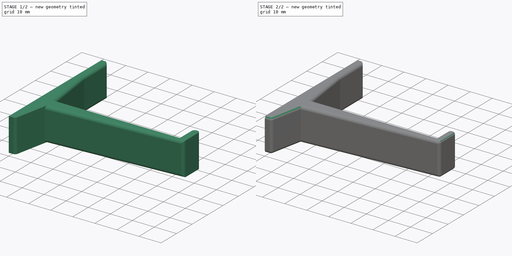
[diagram: build sequence overview — one tinted view per stage of 2, left to right]
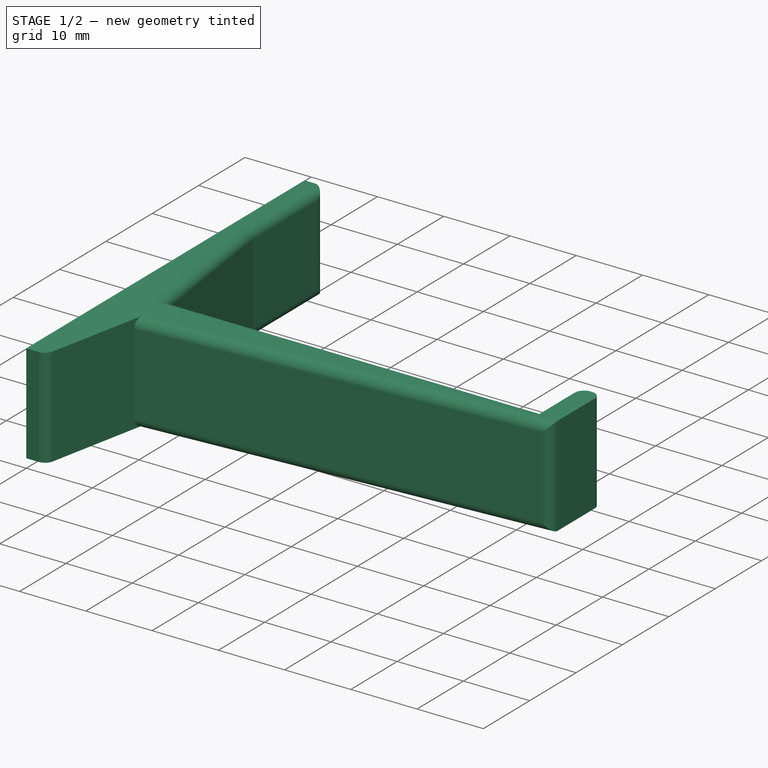
[diagram: stage 1 of 2 — iso view after this stage's code; geometry added in this stage tinted green]
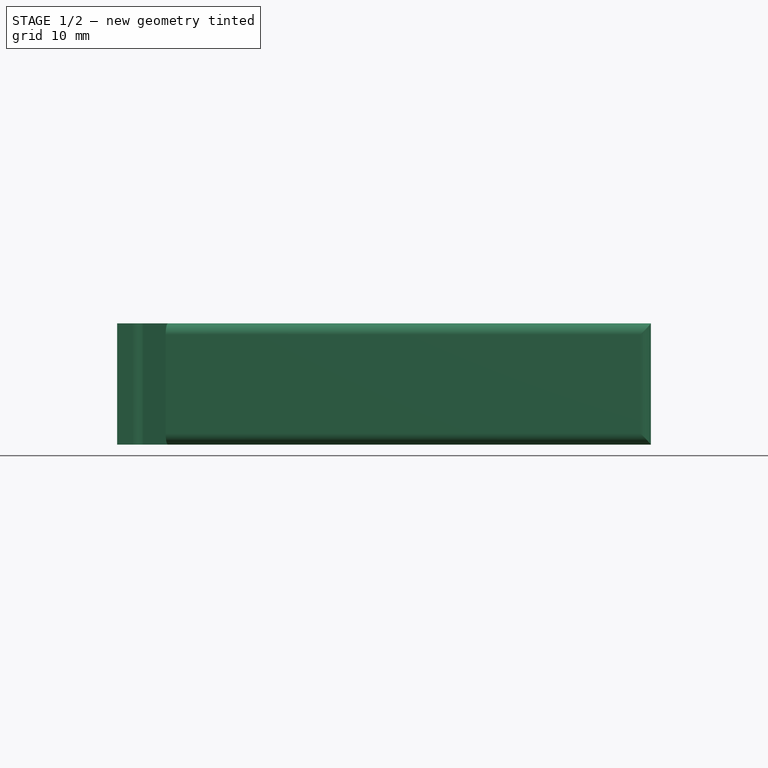
[diagram: stage 1 of 2 — front view after this stage's code; geometry added in this stage tinted green]
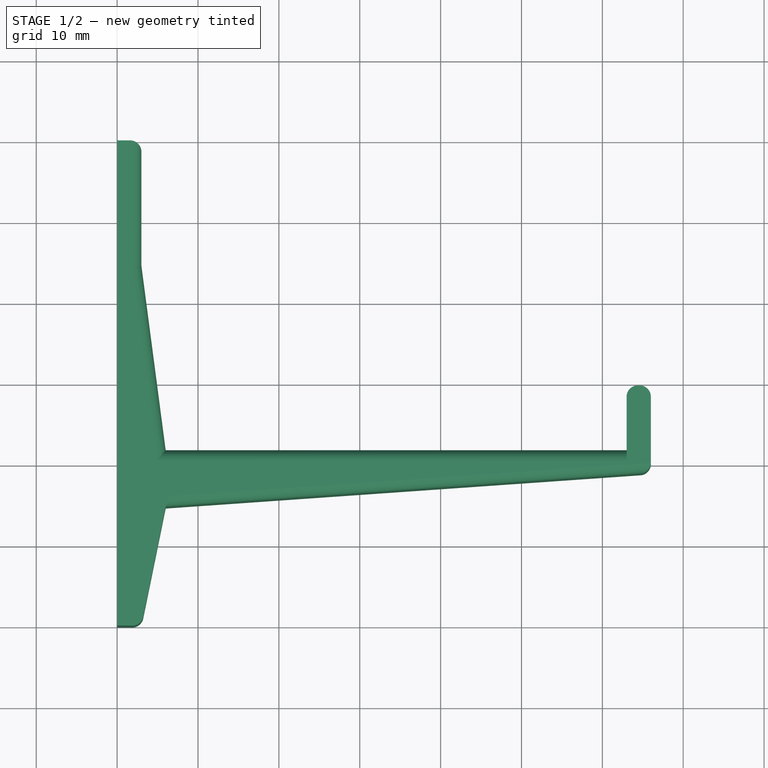
[diagram: stage 1 of 2 — top view after this stage's code; geometry added in this stage tinted green]
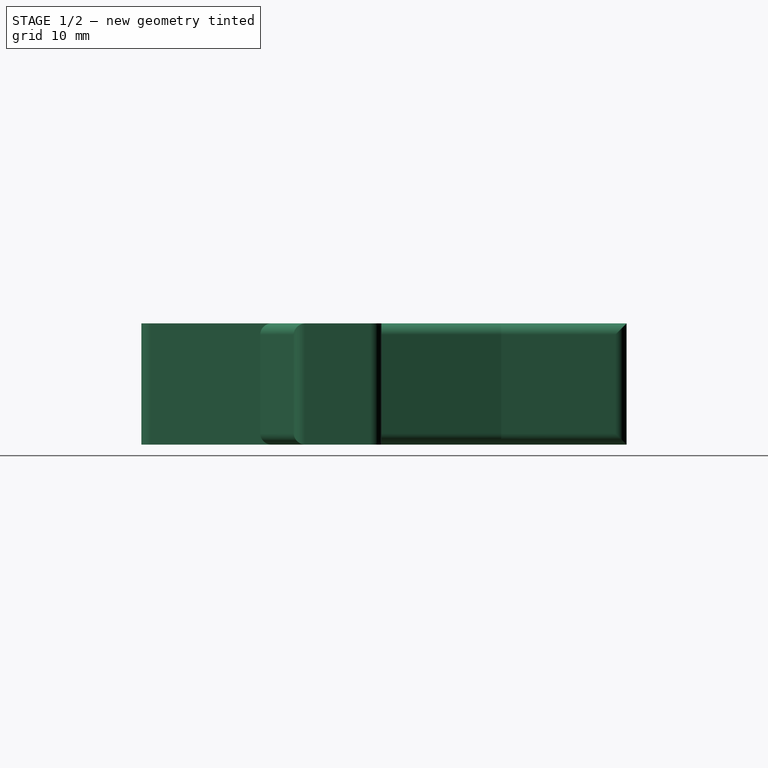
[diagram: stage 1 of 2 — right view after this stage's code; geometry added in this stage tinted green]
FCSTD DOCUMENT  (FreeCAD 0.21R33694 (Git))
Label: 头戴耳机挂钩
License: All rights reserved
LicenseURL: http://en.wikipedia.org/wiki/All_rights_reserved
objects: PartDesign::Fillet×3, Sketcher::SketchObject×1, PartDesign::Pad×1, PartDesign::Body×1
note: 10 computed .brp shape members not serialized (recipe doc carries the construction recipe); baked Part::Feature solids carry a one-line shape summary decoded from their .brp

FEATURE [Sketcher::SketchObject] Sketch
  FullyConstrained = true
  MapMode = 5
  Support = -> [XY_Plane]
  sketch-geometry (11):
    g0: LineSegment StartX=0 StartY=0 StartZ=0 EndX=0 EndY=-60 EndZ=0
    g1: LineSegment StartX=66 StartY=-41.1003 StartZ=0 EndX=66 EndY=-30.3031 EndZ=0
    g2: LineSegment StartX=66 StartY=-30.3031 StartZ=0 EndX=63 EndY=-30.3031 EndZ=0
    g3: LineSegment StartX=63 StartY=-30.3031 StartZ=0 EndX=63 EndY=-38.3031 EndZ=0
    g4: LineSegment StartX=3 StartY=-15.4996 StartZ=0 EndX=3 EndY=0 EndZ=0
    g5: LineSegment StartX=3 StartY=0 StartZ=0 EndX=0 EndY=0 EndZ=0
    g6: LineSegment StartX=3 StartY=-15.4996 StartZ=0 EndX=6 EndY=-38.3031 EndZ=0
    g7: LineSegment StartX=6 StartY=-38.3031 StartZ=0 EndX=63 EndY=-38.3031 EndZ=0
    g8: LineSegment StartX=0 StartY=-60 StartZ=0 EndX=3 EndY=-60 EndZ=0
    g9: LineSegment StartX=3 StartY=-60 StartZ=0 EndX=6 EndY=-45.3031 EndZ=0
    g10: LineSegment StartX=6 StartY=-45.3031 StartZ=0 EndX=66 EndY=-41.1003 EndZ=0
  constraints (32):
    c: Vertical(g0)
    c: Vertical(g1)
    c: Coincident(g1,g2)
    c: Horizontal(g2)
    c: Coincident(g2,g3)
    c: Vertical(g4)
    c: Coincident(g4,g5)
    c: Coincident(g5,g0)
    c: Horizontal(g5)
    c: Vertical(g3)
    c: Coincident(g4,g6)
    c: Coincident(g6,g7)
    c: Horizontal(g7)
    c: Coincident(g7,g3)
    c: Distance(g4,g3) = 60
    c: Distance(g4,g0) = 3
    c: Distance(g6,g0) = 6
    c: Distance(g3,g1) = 3
    c: Coincident(g0,g-1)
    c: Horizontal(g8)
    c: Coincident(g8,g9)
    c: Coincident(g9,g10)
    c: Coincident(g10,g1)
    c: Coincident(g8,g0)
    c: DistanceX(g8,g8) = 3
    c: Distance(g0,g0) = 60
    c: Vertical(g9,g6)
    c: Distance(g3,g10) = 3
    c: Distance(g2,g7) = 8
    c: Distance(g9,g6) = 7
    c: Distance(g9,g8) = 15
    c: Distance(g6,g4) = 23
FEATURE [PartDesign::Pad] Pad
  Direction = (0,0,1)
  Length = 15
  Length2 = 10
  Profile = -> Sketch
  ReferenceAxis = -> Sketch [N_Axis]
  Type = 0
FEATURE [PartDesign::Fillet] Fillet
  Base = -> Pad [Edge31,Edge33,Edge4,Edge3,Edge32,Edge30,Edge23,Edge20,Edge17,Edge11,Edge2,Edge18,Edge19]
  BaseFeature = -> Pad
  Radius = 1.4
  SupportTransform = false
  UseAllEdges = false
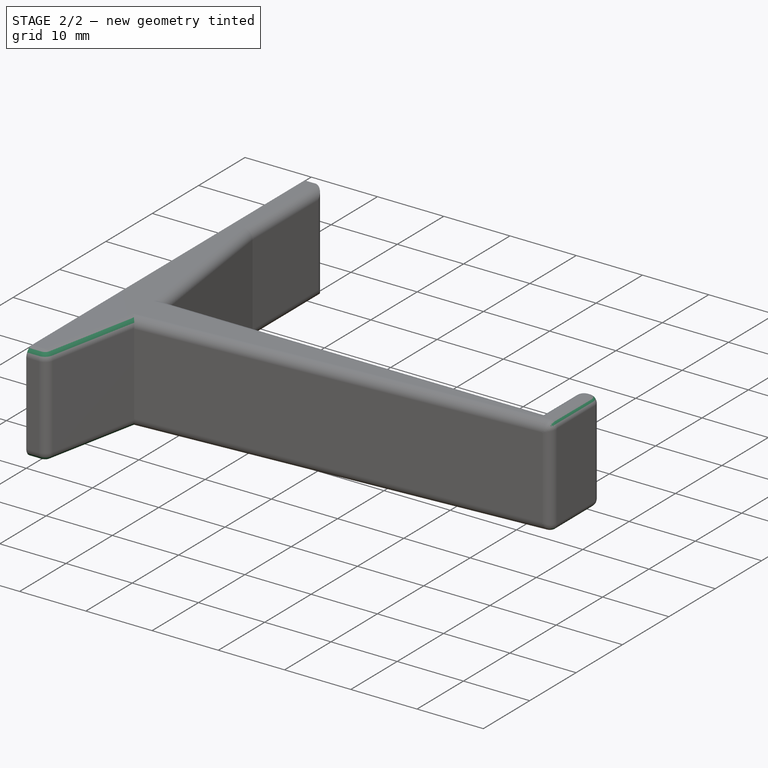
[diagram: stage 2 of 2 — iso view after this stage's code; geometry added in this stage tinted green]
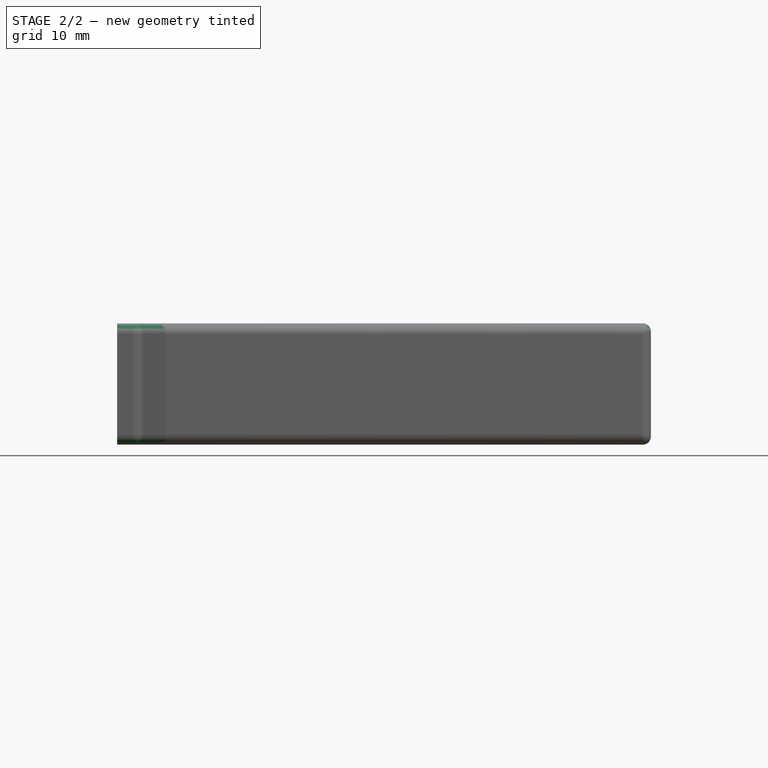
[diagram: stage 2 of 2 — front view after this stage's code; geometry added in this stage tinted green]
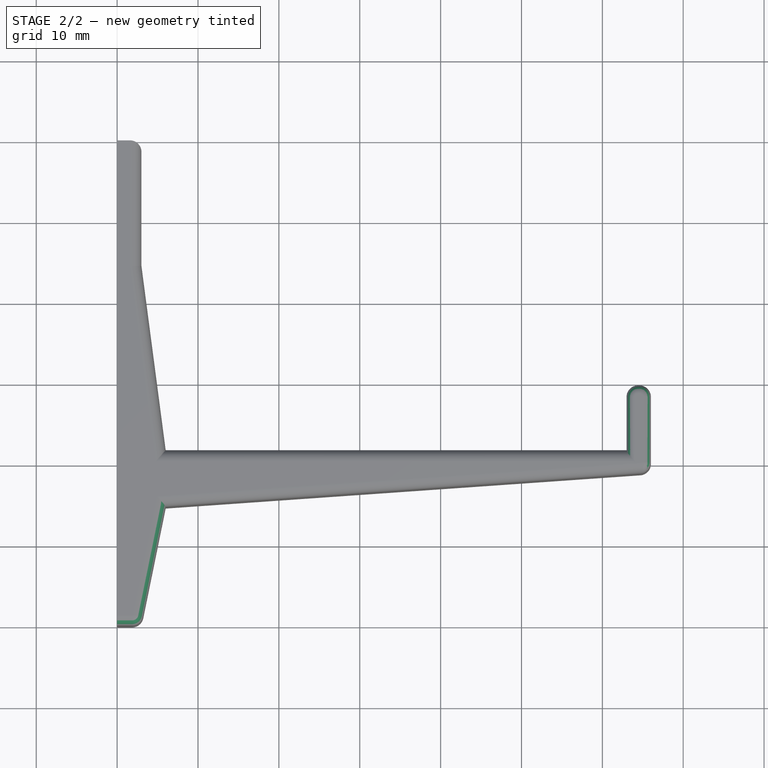
[diagram: stage 2 of 2 — top view after this stage's code; geometry added in this stage tinted green]
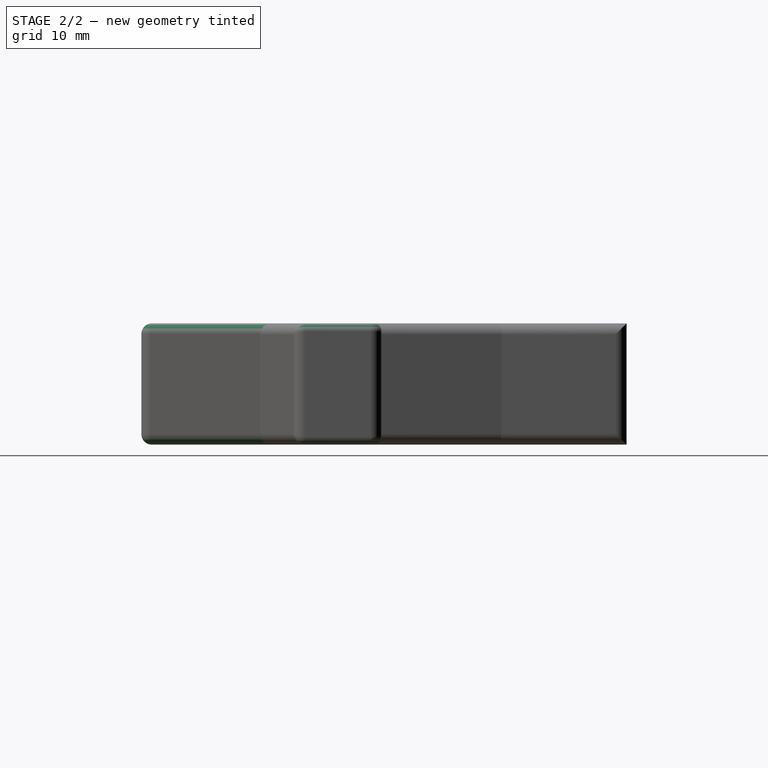
[diagram: stage 2 of 2 — right view after this stage's code; geometry added in this stage tinted green]
FEATURE [PartDesign::Fillet] Fillet001
  Base = -> Fillet [Edge29,Edge43]
  BaseFeature = -> Fillet
  Radius = 1
  SupportTransform = false
  UseAllEdges = false
FEATURE [PartDesign::Fillet] Fillet002
  Base = -> Fillet001 [Edge28,Edge5]
  BaseFeature = -> Fillet001
  Radius = 1.3
  SupportTransform = false
  UseAllEdges = false
FEATURE [PartDesign::Body] Body  label="实体"
  Group = -> [Sketch,Pad,Fillet,Fillet001,Fillet002]
  Origin = -> Origin
  Tip = -> Fillet002
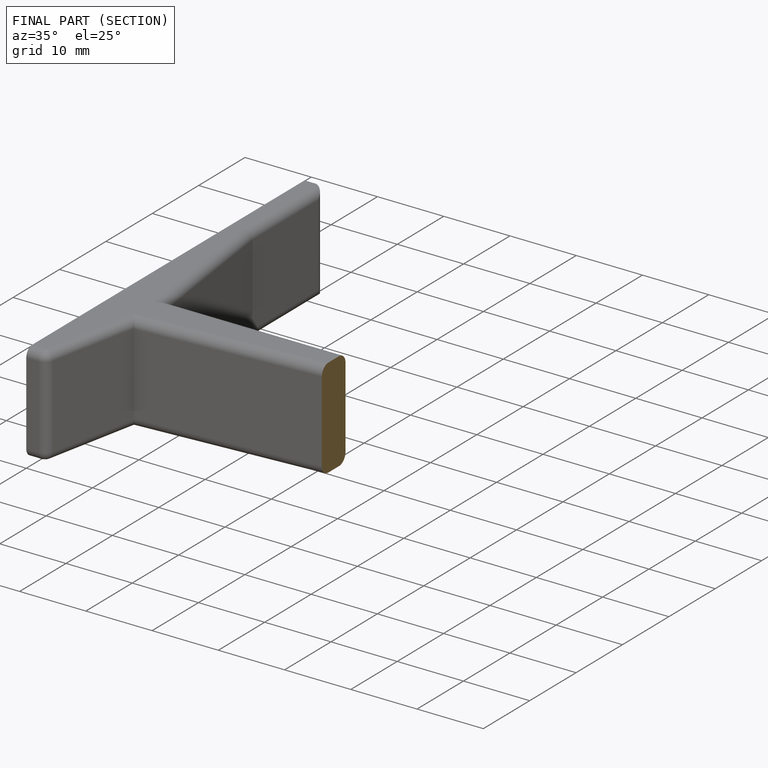
[diagram: finished part — half-section view (interior)]
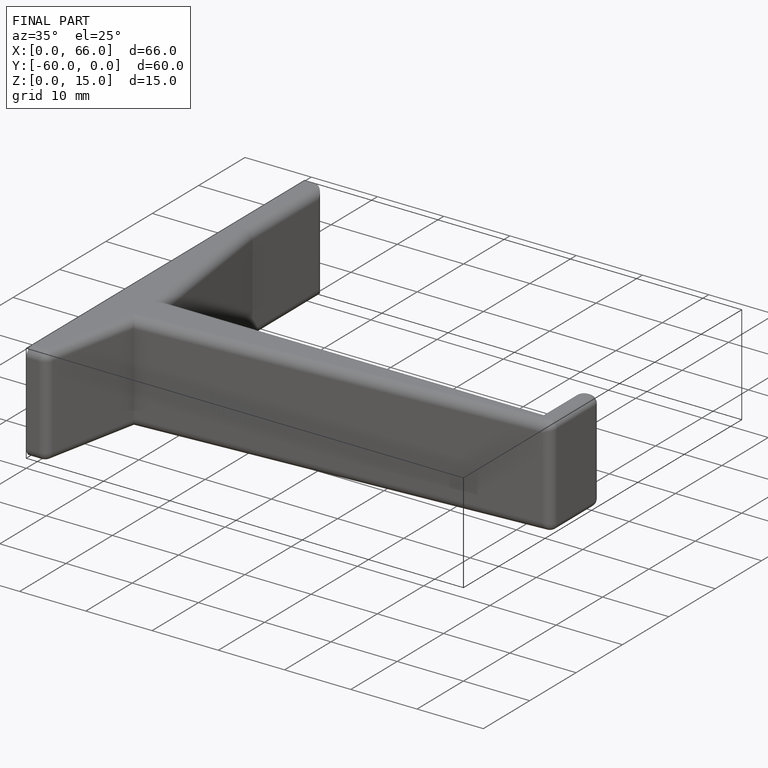
[diagram: finished part — iso view with bounding-box wireframe]
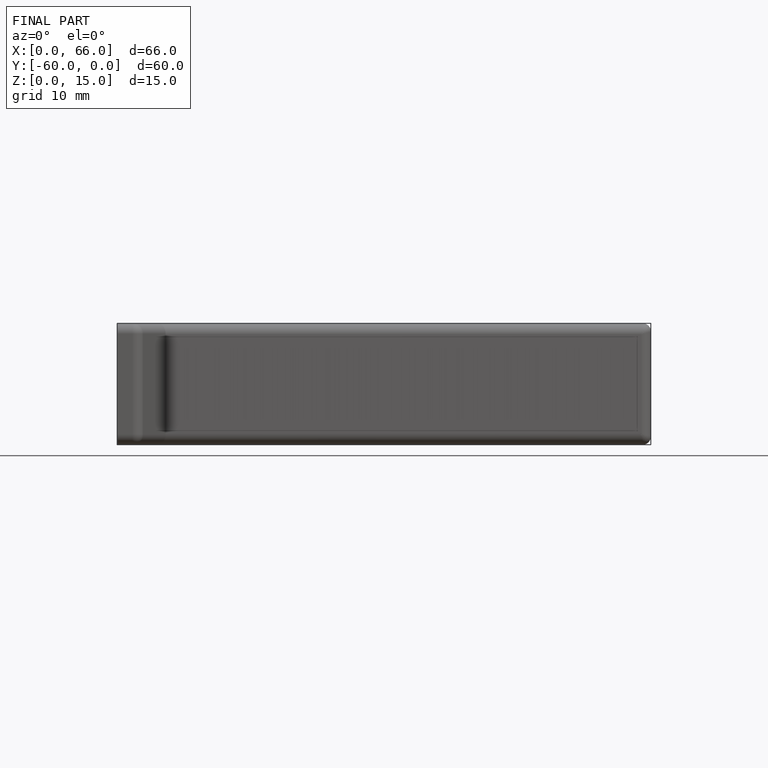
[diagram: finished part — front view with bounding-box wireframe]
